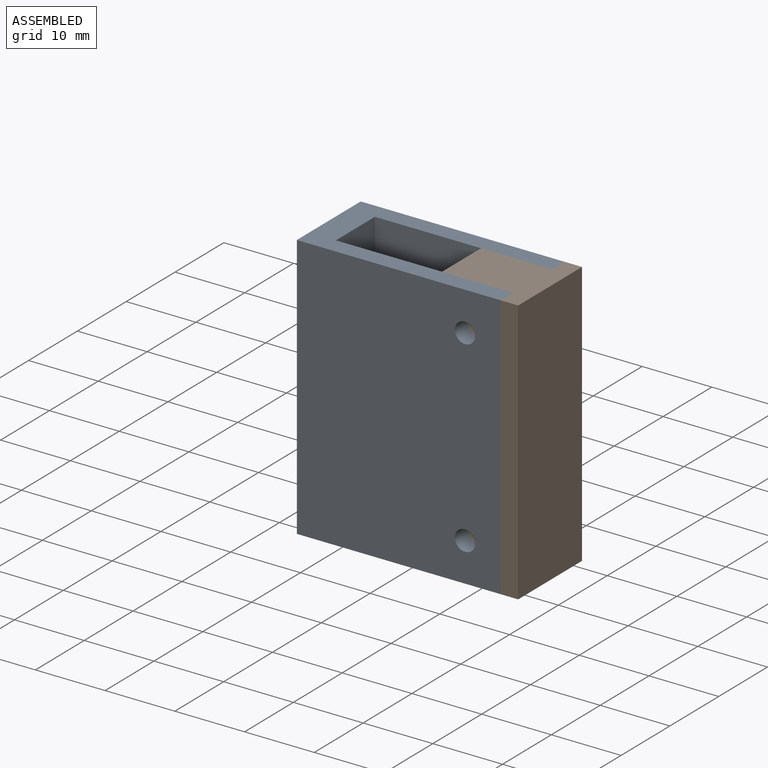
[diagram: assembled view]
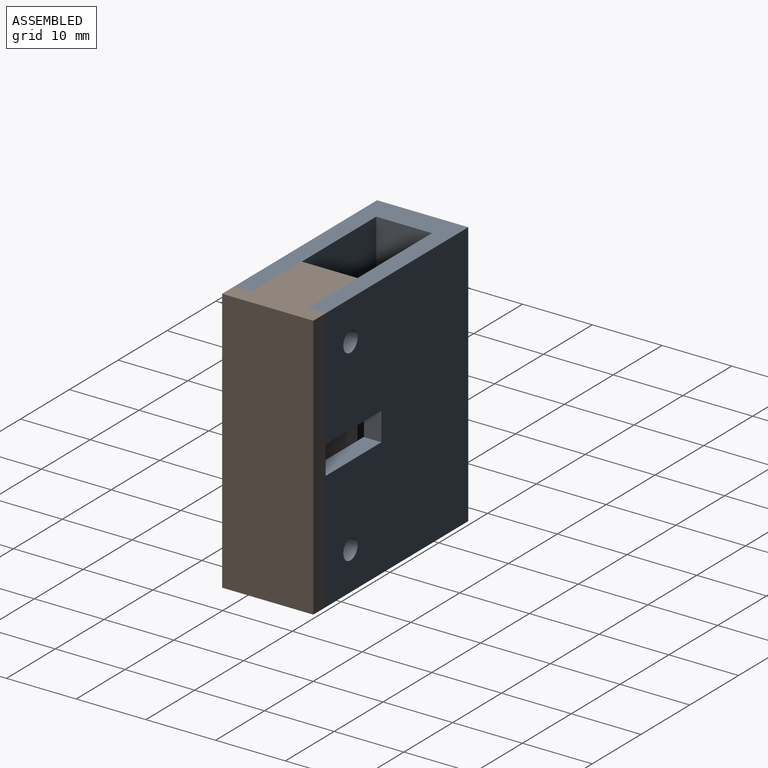
[diagram: assembled view, second angle]
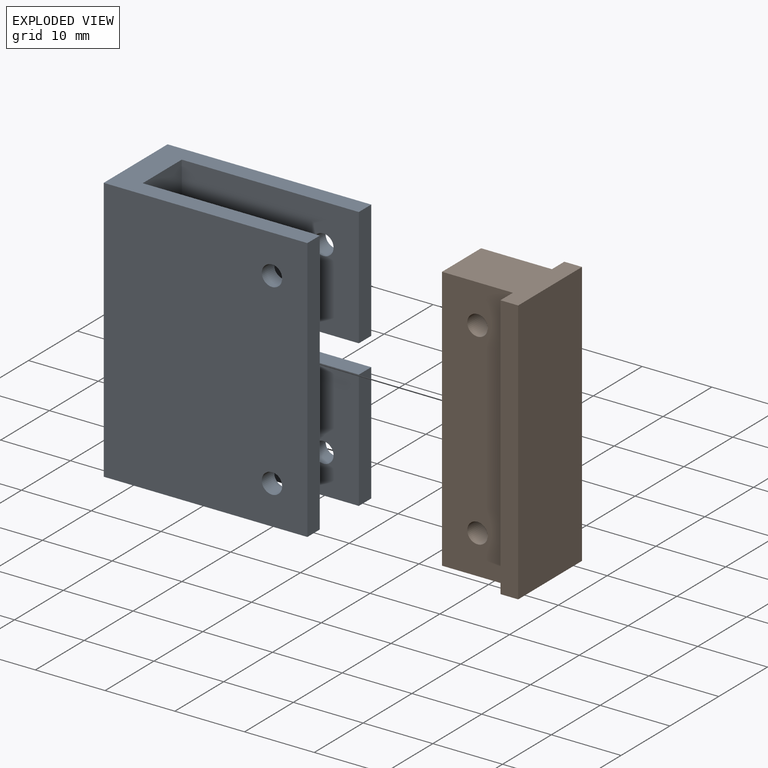
[diagram: exploded view]
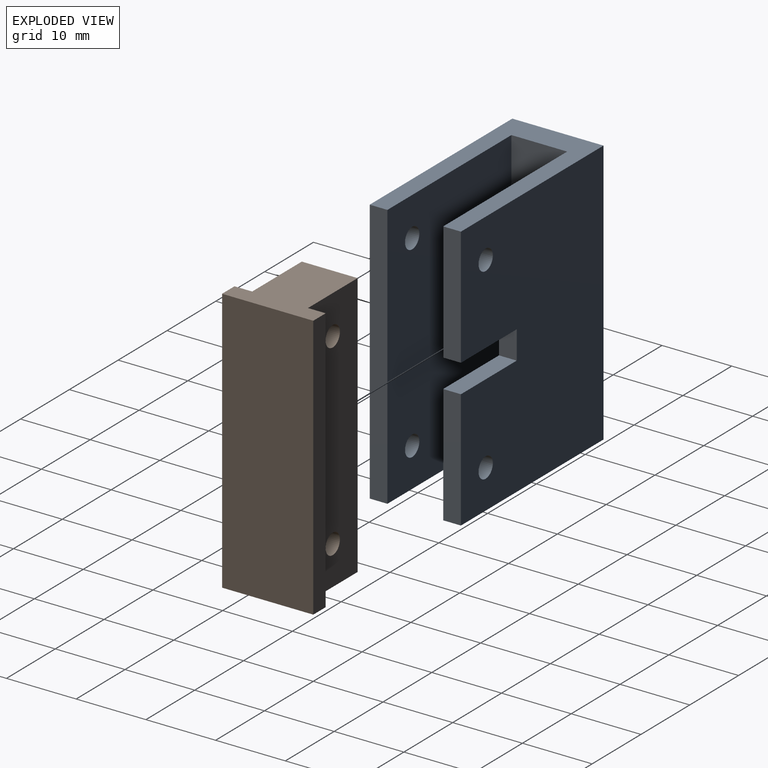
[diagram: exploded view, second angle]
ASSEMBLY  parts=2 mates=3
PART A: 18 faces, bbox 29.2x13.1x38.1 mm
  f0: plane 17.02x2.54mm, normal (1,0,0), area 43.2mm2, adj f1,f7,f9,f11
  f1: plane 38.1x29.21mm, normal (0,1,0), area 1053mm2, adj f0,f2,f8,f9,f10,f11,f12,f13
  f2: plane 38.1x13.08mm, normal (-1,0,0), area 498.4mm2, adj f1,f3,f9,f10
  f3: plane 38.1x29.21mm, normal (0,-1,0), area 1099.5mm2, adj f2,f4,f9,f10,f16,f17
  f4: plane 38.1x2.54mm, normal (1,0,0), area 96.8mm2, adj f3,f5,f9,f10
  f5: plane 38.1x25.4mm, normal (0,1,0), area 954.3mm2, adj f4,f6,f9,f10,f16,f17
  f6: plane 38.1x8mm, normal (1,0,0), area 304.8mm2, adj f5,f7,f9,f10
  f7: plane 38.1x25.4mm, normal (0,-1,0), area 907.9mm2, adj f0,f6,f8,f9,f10,f11,f12,f13
  f8: plane 17.02x2.54mm, normal (1,0,0), area 43.2mm2, adj f1,f7,f10,f12
  f9: plane 29.21x13.08mm, normal (0,0,1), area 178.9mm2, adj f0,f1,f2,f3,f4,f5,f6,f7
  f10: plane 29.21x13.08mm, normal (0,0,-1), area 178.9mm2, adj f1,f2,f3,f4,f5,f6,f7,f8
  f11: plane 11.43x2.54mm, normal (0,0,-1), area 29mm2, adj f0,f1,f7,f13
  f12: plane 11.43x2.54mm, normal (0,0,1), area 29mm2, adj f1,f7,f8,f13
  f13: plane 4.06x2.54mm, normal (1,0,0), area 10.3mm2, adj f1,f7,f11,f12
  f14: cylinder r=1.46mm len=2.92mm, axis (0,1,0), area 23.3mm2, adj f1,f7
  f15: cylinder r=1.46mm len=2.92mm, axis (0,1,0), area 23.3mm2, adj f1,f7
  f16: cylinder r=1.46mm len=2.92mm, axis (0,1,0), area 23.3mm2, adj f3,f5
  f17: cylinder r=1.46mm len=2.92mm, axis (0,1,0), area 23.3mm2, adj f3,f5
PART B: 12 faces, bbox 12.7x13.1x38.1 mm
  f0: plane 38.1x2.54mm, normal (0,1,0), area 96.8mm2, adj f1,f7,f8,f9
  f1: plane 38.1x2.54mm, normal (-1,0,0), area 96.8mm2, adj f0,f2,f8,f9
  f2: plane 38.1x10.16mm, normal (0,1,0), area 373.7mm2, adj f1,f3,f8,f9,f10,f11
  f3: plane 38.1x8mm, normal (-1,0,0), area 304.8mm2, adj f2,f4,f8,f9
  f4: plane 38.1x10.16mm, normal (0,-1,0), area 373.7mm2, adj f3,f5,f8,f9,f10,f11
  f5: plane 38.1x2.54mm, normal (-1,0,0), area 96.8mm2, adj f4,f6,f8,f9
  f6: plane 38.1x2.54mm, normal (0,-1,0), area 96.8mm2, adj f5,f7,f8,f9
  f7: plane 38.1x13.08mm, normal (1,0,0), area 498.4mm2, adj f0,f6,f8,f9
  f8: plane 13.08x12.7mm, normal (0,0,1), area 114.5mm2, adj f0,f1,f2,f3,f4,f5,f6,f7
  f9: plane 13.08x12.7mm, normal (0,0,-1), area 114.5mm2, adj f0,f1,f2,f3,f4,f5,f6,f7
  f10: cylinder r=1.46mm len=8mm, axis (0,1,0), area 73.4mm2, adj f2,f4
  f11: cylinder r=1.46mm len=8mm, axis (0,1,0), area 73.4mm2, adj f2,f4
PLACE A t=(24.42,7.24,-39.89)mm
PLACE B t=(53.63,13.97,-39.89)mm
MATE planar A.f0 <-> B.f1  axis (1,0,0) through (53.63,19.05,-10.3)mm
MATE planar A.f7 <-> B.f2  axis (0,-1,0) through (40.93,17.78,-1.79)mm
MATE planar A.f9 <-> B.f8  axis (0,0,1) through (36.86,13.78,-1.79)mm
